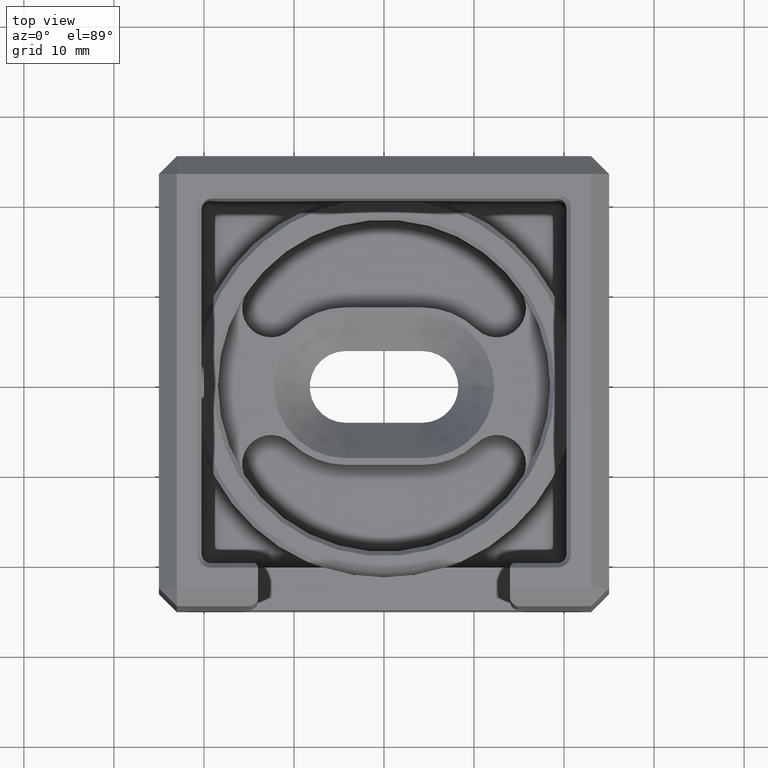
[diagram: clean part render]
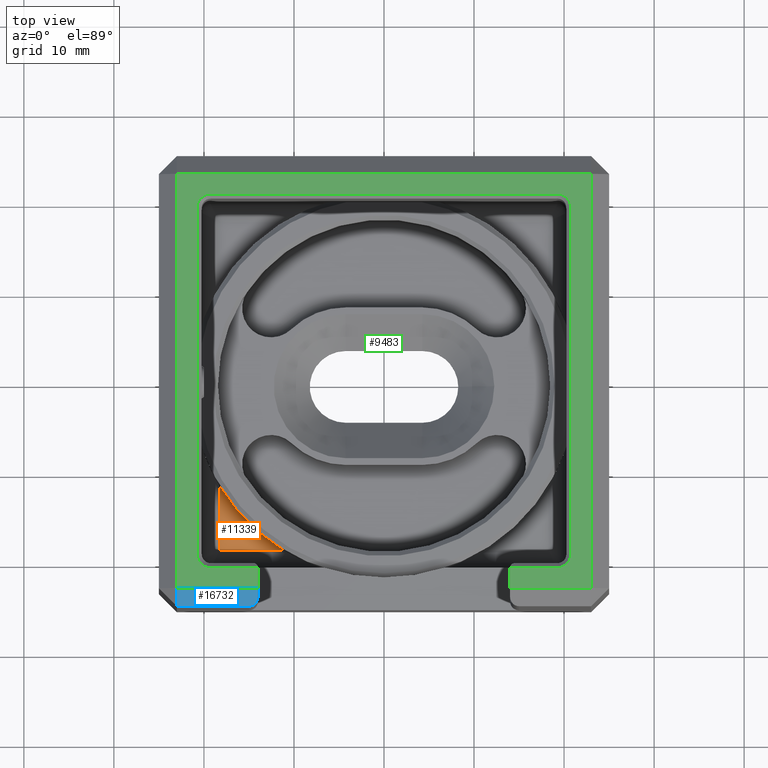
[diagram: same view with three faces highlighted in distinct colors, each labeled with its STEP entity id]
A machine part, top view with three faces highlighted in distinct colors.
Their STEP definitions:

[orange] entity #11339 — the highlighted planar face has unit normal (0, 0, 1).
#1128 = AXIS2_PLACEMENT_3D ( 'NONE', #7837, #7933, #18195 ) ;
#2959 = CIRCLE ( 'NONE', #18569, 21.35000000000000100 ) ;
#3832 = VERTEX_POINT ( 'NONE', #4011 ) ;
#3871 = CARTESIAN_POINT ( 'NONE',  ( 0.0000000000000000000, 0.0000000000000000000, -15.00000000000000400 ) ) ;
#4011 = CARTESIAN_POINT ( 'NONE',  ( -18.25000000000000400, -11.07971118757163300, -15.00000000000000400 ) ) ;
#4672 = EDGE_CURVE ( 'NONE', #8509, #3832, #2959, .T. ) ;
#5789 = DIRECTION ( 'NONE',  ( 1.000000000000000000, 0.0000000000000000000, 0.0000000000000000000 ) ) ;
#7224 = LINE ( 'NONE', #18439, #17539 ) ;
#7825 = VECTOR ( 'NONE', #13729, 1000.000000000000000 ) ;
#7837 = CARTESIAN_POINT ( 'NONE',  ( 0.0000000000000000000, 0.0000000000000000000, -15.00000000000000400 ) ) ;
#7933 = DIRECTION ( 'NONE',  ( -0.0000000000000000000, 0.0000000000000000000, 1.000000000000000000 ) ) ;
#8452 = ORIENTED_EDGE ( 'NONE', *, *, #24560, .T. ) ;
#8509 = VERTEX_POINT ( 'NONE', #9468 ) ;
#9468 = CARTESIAN_POINT ( 'NONE',  ( -11.07971118757163100, -18.25000000000000400, -15.00000000000000400 ) ) ;
#11339 = ADVANCED_FACE ( 'NONE', ( #17960 ), #20158, .T. ) ;
#13729 = DIRECTION ( 'NONE',  ( 8.566535683836084200E-017, -1.000000000000000000, 0.0000000000000000000 ) ) ;
#13914 = CARTESIAN_POINT ( 'NONE',  ( -18.25000000000000400, -1.563392762300085500E-015, -15.00000000000000400 ) ) ;
#14569 = LINE ( 'NONE', #13914, #7825 ) ;
#16133 = ORIENTED_EDGE ( 'NONE', *, *, #4672, .T. ) ;
#17539 = VECTOR ( 'NONE', #20506, 1000.000000000000000 ) ;
#17960 = FACE_OUTER_BOUND ( 'NONE', #19708, .T. ) ;
#18195 = DIRECTION ( 'NONE',  ( 1.000000000000000000, 0.0000000000000000000, 0.0000000000000000000 ) ) ;
#18439 = CARTESIAN_POINT ( 'NONE',  ( 0.0000000000000000000, -18.25000000000000400, -15.00000000000000400 ) ) ;
#18569 = AXIS2_PLACEMENT_3D ( 'NONE', #3871, #26736, #5789 ) ;
#18773 = VERTEX_POINT ( 'NONE', #23566 ) ;
#19708 = EDGE_LOOP ( 'NONE', ( #20795, #16133, #8452 ) ) ;
#20158 = PLANE ( 'NONE',  #1128 ) ;
#20506 = DIRECTION ( 'NONE',  ( 1.000000000000000000, 0.0000000000000000000, 0.0000000000000000000 ) ) ;
#20795 = ORIENTED_EDGE ( 'NONE', *, *, #21173, .T. ) ;
#21173 = EDGE_CURVE ( 'NONE', #18773, #8509, #7224, .T. ) ;
#23566 = CARTESIAN_POINT ( 'NONE',  ( -18.25000000000000400, -18.25000000000000400, -15.00000000000000400 ) ) ;
#24560 = EDGE_CURVE ( 'NONE', #3832, #18773, #14569, .T. ) ;
#26736 = DIRECTION ( 'NONE',  ( 0.0000000000000000000, -0.0000000000000000000, -1.000000000000000000 ) ) ;

[blue] entity #16732 — the highlighted planar face has unit normal (0, -0.7071, 0.7071).
#538 = EDGE_CURVE ( 'NONE', #4522, #4085, #18331, .T. ) ;
#798 = CARTESIAN_POINT ( 'NONE',  ( -13.99999999999999600, -23.99999999999999300, 18.99999999999997900 ) ) ;
#880 = CARTESIAN_POINT ( 'NONE',  ( -22.99999999999998600, -22.99999999999997900, 20.00000000000000000 ) ) ;
#1248 = CARTESIAN_POINT ( 'NONE',  ( -13.99999999999999600, -22.99999999999997900, 20.00000000000000000 ) ) ;
#1535 = ORIENTED_EDGE ( 'NONE', *, *, #23009, .T. ) ;
#2166 = ORIENTED_EDGE ( 'NONE', *, *, #538, .F. ) ;
#2313 = VECTOR ( 'NONE', #14146, 1000.000000000000100 ) ;
#4085 = VERTEX_POINT ( 'NONE', #1248 ) ;
#4522 = VERTEX_POINT ( 'NONE', #880 ) ;
#5401 = EDGE_CURVE ( 'NONE', #25790, #12059, #11193, .T. ) ;
#6556 = ORIENTED_EDGE ( 'NONE', *, *, #13095, .F. ) ;
#7254 = LINE ( 'NONE', #15214, #21728 ) ;
#7481 = DIRECTION ( 'NONE',  ( 0.0000000000000000000, -0.7071067811865451300, -0.7071067811865500200 ) ) ;
#7928 = CARTESIAN_POINT ( 'NONE',  ( -14.41421356237308900, -24.99999999999999300, 17.99999999999997200 ) ) ;
#9921 = PLANE ( 'NONE',  #18867 ) ;
#10378 = ORIENTED_EDGE ( 'NONE', *, *, #19935, .F. ) ;
#11193 =( BOUNDED_CURVE ( )  B_SPLINE_CURVE ( 3, ( #11790, #7928, #26141, #13836 ),
 .UNSPECIFIED., .F., .F. ) 
 B_SPLINE_CURVE_WITH_KNOTS ( ( 4, 4 ),
 ( 3.141592653589793100, 4.712388980384689700 ),
 .UNSPECIFIED. ) 
 CURVE ( )  GEOMETRIC_REPRESENTATION_ITEM ( )  RATIONAL_B_SPLINE_CURVE ( ( 1.000000000000000000, 0.8047378541243649400, 0.8047378541243649400, 1.000000000000000000 ) ) 
 REPRESENTATION_ITEM ( '' )  );
#11396 = LINE ( 'NONE', #16407, #2313 ) ;
#11440 = DIRECTION ( 'NONE',  ( -1.000000000000000000, 0.0000000000000000000, 0.0000000000000000000 ) ) ;
#11790 = CARTESIAN_POINT ( 'NONE',  ( -14.99999999999999600, -24.99999999999999300, 17.99999999999997200 ) ) ;
#12006 = DIRECTION ( 'NONE',  ( 1.000000000000000000, 0.0000000000000000000, 0.0000000000000000000 ) ) ;
#12059 = VERTEX_POINT ( 'NONE', #798 ) ;
#12510 = LINE ( 'NONE', #13676, #21184 ) ;
#12597 = FACE_OUTER_BOUND ( 'NONE', #19071, .T. ) ;
#13095 = EDGE_CURVE ( 'NONE', #4085, #12059, #7254, .T. ) ;
#13676 = CARTESIAN_POINT ( 'NONE',  ( -25.00000000000000000, -24.99999999999999300, 17.99999999999997200 ) ) ;
#13836 = CARTESIAN_POINT ( 'NONE',  ( -13.99999999999999600, -23.99999999999999300, 18.99999999999997900 ) ) ;
#14146 = DIRECTION ( 'NONE',  ( 6.839255870354862400E-017, -0.7071067811865451300, -0.7071067811865500200 ) ) ;
#14233 = DIRECTION ( 'NONE',  ( -0.0000000000000000000, -0.7071067811865500200, 0.7071067811865451300 ) ) ;
#14306 = ORIENTED_EDGE ( 'NONE', *, *, #5401, .T. ) ;
#15214 = CARTESIAN_POINT ( 'NONE',  ( -13.99999999999999600, -22.99999999999997900, 20.00000000000000000 ) ) ;
#16407 = CARTESIAN_POINT ( 'NONE',  ( -22.99999999999998600, -24.99999999999999300, 17.99999999999997200 ) ) ;
#16732 = ADVANCED_FACE ( 'NONE', ( #12597 ), #9921, .T. ) ;
#18331 = LINE ( 'NONE', #24300, #23074 ) ;
#18867 = AXIS2_PLACEMENT_3D ( 'NONE', #24198, #14233, #20359 ) ;
#19071 = EDGE_LOOP ( 'NONE', ( #10378, #14306, #6556, #2166, #1535 ) ) ;
#19679 = VERTEX_POINT ( 'NONE', #24553 ) ;
#19935 = EDGE_CURVE ( 'NONE', #25790, #19679, #12510, .T. ) ;
#20359 = DIRECTION ( 'NONE',  ( -1.000000000000000000, 0.0000000000000000000, -0.0000000000000000000 ) ) ;
#21184 = VECTOR ( 'NONE', #11440, 1000.000000000000000 ) ;
#21728 = VECTOR ( 'NONE', #7481, 1000.000000000000100 ) ;
#23009 = EDGE_CURVE ( 'NONE', #4522, #19679, #11396, .T. ) ;
#23074 = VECTOR ( 'NONE', #12006, 1000.000000000000000 ) ;
#23207 = CARTESIAN_POINT ( 'NONE',  ( -14.99999999999999600, -24.99999999999999300, 17.99999999999997200 ) ) ;
#24198 = CARTESIAN_POINT ( 'NONE',  ( 0.0000000000000000000, -22.99999999999997900, 20.00000000000000000 ) ) ;
#24300 = CARTESIAN_POINT ( 'NONE',  ( 24.99999999999999300, -22.99999999999997900, 20.00000000000000000 ) ) ;
#24553 = CARTESIAN_POINT ( 'NONE',  ( -22.99999999999998600, -24.99999999999999300, 17.99999999999997200 ) ) ;
#25790 = VERTEX_POINT ( 'NONE', #23207 ) ;
#26141 = CARTESIAN_POINT ( 'NONE',  ( -13.99999999999999500, -24.58578643762690100, 18.41421356237307100 ) ) ;

[green] entity #9483 — the highlighted planar face has unit normal (0, 0, 1).
#189 = DIRECTION ( 'NONE',  ( 1.000000000000000000, 0.0000000000000000000, 0.0000000000000000000 ) ) ;
#538 = EDGE_CURVE ( 'NONE', #4522, #4085, #18331, .T. ) ;
#645 = DIRECTION ( 'NONE',  ( 1.000000000000000000, 0.0000000000000000000, 0.0000000000000000000 ) ) ;
#880 = CARTESIAN_POINT ( 'NONE',  ( -22.99999999999998600, -22.99999999999997900, 20.00000000000000000 ) ) ;
#951 = EDGE_CURVE ( 'NONE', #23953, #8227, #13131, .T. ) ;
#988 = DIRECTION ( 'NONE',  ( 1.000000000000000000, 0.0000000000000000000, 0.0000000000000000000 ) ) ;
#1012 = CIRCLE ( 'NONE', #24324, 1.499999999999994400 ) ;
#1061 = ORIENTED_EDGE ( 'NONE', *, *, #538, .T. ) ;
#1248 = CARTESIAN_POINT ( 'NONE',  ( -13.99999999999999600, -22.99999999999997900, 20.00000000000000000 ) ) ;
#1608 = CARTESIAN_POINT ( 'NONE',  ( 22.99999999999997900, 22.99999999999997900, 20.00000000000000000 ) ) ;
#1747 = EDGE_CURVE ( 'NONE', #17145, #4522, #25640, .T. ) ;
#1781 = CARTESIAN_POINT ( 'NONE',  ( 14.00000000000000400, -20.75000000000000000, 20.00000000000000000 ) ) ;
#2310 = AXIS2_PLACEMENT_3D ( 'NONE', #19615, #7283, #988 ) ;
#2997 = CARTESIAN_POINT ( 'NONE',  ( 14.00000000000000400, -30.00000000000000700, 20.00000000000000000 ) ) ;
#3461 = DIRECTION ( 'NONE',  ( 0.0000000000000000000, -0.0000000000000000000, -1.000000000000000000 ) ) ;
#3531 = ORIENTED_EDGE ( 'NONE', *, *, #951, .T. ) ;
#3801 = CARTESIAN_POINT ( 'NONE',  ( -19.25000000000000000, -20.74999999999999300, 20.00000000000000000 ) ) ;
#3824 = CARTESIAN_POINT ( 'NONE',  ( -25.00000000000000700, 22.99999999999997900, 20.00000000000000000 ) ) ;
#4085 = VERTEX_POINT ( 'NONE', #1248 ) ;
#4522 = VERTEX_POINT ( 'NONE', #880 ) ;
#4566 = VERTEX_POINT ( 'NONE', #11394 ) ;
#4662 = ORIENTED_EDGE ( 'NONE', *, *, #20646, .T. ) ;
#4929 = CARTESIAN_POINT ( 'NONE',  ( -13.99999999999999600, -30.00000000000000700, 20.00000000000000000 ) ) ;
#5132 = ORIENTED_EDGE ( 'NONE', *, *, #8382, .T. ) ;
#5472 = CARTESIAN_POINT ( 'NONE',  ( 20.75000000000000400, -19.25000000000000000, 20.00000000000000000 ) ) ;
#5694 = CARTESIAN_POINT ( 'NONE',  ( -13.99999999999999600, -20.75000000000000000, 20.00000000000000000 ) ) ;
#5779 = ORIENTED_EDGE ( 'NONE', *, *, #13921, .T. ) ;
#5786 = ORIENTED_EDGE ( 'NONE', *, *, #14650, .T. ) ;
#5901 = VERTEX_POINT ( 'NONE', #12375 ) ;
#5920 = CARTESIAN_POINT ( 'NONE',  ( 24.99999999999999300, -22.99999999999997900, 20.00000000000000000 ) ) ;
#5996 = DIRECTION ( 'NONE',  ( -1.000000000000000000, 0.0000000000000000000, -0.0000000000000000000 ) ) ;
#6302 = EDGE_CURVE ( 'NONE', #13630, #7166, #17110, .T. ) ;
#6825 = CARTESIAN_POINT ( 'NONE',  ( -19.25000000000000000, -19.25000000000000000, 20.00000000000000000 ) ) ;
#6828 = CARTESIAN_POINT ( 'NONE',  ( 19.24999999999999600, 20.74999999999999300, 20.00000000000000000 ) ) ;
#7166 = VERTEX_POINT ( 'NONE', #12640 ) ;
#7258 = ORIENTED_EDGE ( 'NONE', *, *, #14980, .T. ) ;
#7265 = ORIENTED_EDGE ( 'NONE', *, *, #20098, .T. ) ;
#7283 = DIRECTION ( 'NONE',  ( -0.0000000000000000000, 0.0000000000000000000, 1.000000000000000000 ) ) ;
#7375 = FACE_OUTER_BOUND ( 'NONE', #23463, .T. ) ;
#7544 = CARTESIAN_POINT ( 'NONE',  ( -19.25000000000000000, -20.74999999999999300, 20.00000000000000000 ) ) ;
#7645 = CARTESIAN_POINT ( 'NONE',  ( -20.74999999999999600, 19.25000000000000000, 20.00000000000000000 ) ) ;
#7680 = CIRCLE ( 'NONE', #13898, 1.500000000000008200 ) ;
#7844 = VECTOR ( 'NONE', #17667, 1000.000000000000000 ) ;
#7850 = AXIS2_PLACEMENT_3D ( 'NONE', #10898, #8737, #12953 ) ;
#8227 = VERTEX_POINT ( 'NONE', #1781 ) ;
#8382 = EDGE_CURVE ( 'NONE', #5901, #24573, #10624, .T. ) ;
#8547 = VERTEX_POINT ( 'NONE', #13125 ) ;
#8575 = EDGE_CURVE ( 'NONE', #22074, #8227, #12259, .T. ) ;
#8668 = DIRECTION ( 'NONE',  ( 1.000000000000000000, 0.0000000000000000000, 0.0000000000000000000 ) ) ;
#8737 = DIRECTION ( 'NONE',  ( 0.0000000000000000000, -0.0000000000000000000, -1.000000000000000000 ) ) ;
#8758 = DIRECTION ( 'NONE',  ( 0.0000000000000000000, 1.000000000000000000, 0.0000000000000000000 ) ) ;
#9261 = VECTOR ( 'NONE', #16313, 1000.000000000000000 ) ;
#9483 = ADVANCED_FACE ( 'NONE', ( #7375 ), #25873, .T. ) ;
#9574 = EDGE_CURVE ( 'NONE', #14711, #10236, #18325, .T. ) ;
#9689 = ORIENTED_EDGE ( 'NONE', *, *, #23064, .T. ) ;
#9827 = ORIENTED_EDGE ( 'NONE', *, *, #9574, .T. ) ;
#10135 = CIRCLE ( 'NONE', #22090, 1.500000000000008200 ) ;
#10236 = VERTEX_POINT ( 'NONE', #13442 ) ;
#10244 = DIRECTION ( 'NONE',  ( -8.566535683836084200E-017, 1.000000000000000000, 0.0000000000000000000 ) ) ;
#10624 = LINE ( 'NONE', #19194, #20640 ) ;
#10633 = CARTESIAN_POINT ( 'NONE',  ( 19.25000000000000000, -19.25000000000000000, 20.00000000000000000 ) ) ;
#10898 = CARTESIAN_POINT ( 'NONE',  ( -19.25000000000000400, 19.25000000000000000, 20.00000000000000000 ) ) ;
#11118 = CARTESIAN_POINT ( 'NONE',  ( -19.25000000000000400, 20.74999999999999300, 20.00000000000000000 ) ) ;
#11262 = DIRECTION ( 'NONE',  ( -0.0000000000000000000, -1.000000000000000000, -0.0000000000000000000 ) ) ;
#11394 = CARTESIAN_POINT ( 'NONE',  ( 20.75000000000000400, -19.25000000000000000, 20.00000000000000000 ) ) ;
#11909 = EDGE_CURVE ( 'NONE', #22074, #5901, #13086, .T. ) ;
#11916 = VECTOR ( 'NONE', #11262, 1000.000000000000000 ) ;
#12006 = DIRECTION ( 'NONE',  ( 1.000000000000000000, 0.0000000000000000000, 0.0000000000000000000 ) ) ;
#12032 = CARTESIAN_POINT ( 'NONE',  ( 19.25000000000000000, -20.75000000000000700, 20.00000000000000000 ) ) ;
#12166 = ORIENTED_EDGE ( 'NONE', *, *, #17609, .T. ) ;
#12259 = LINE ( 'NONE', #2997, #20295 ) ;
#12375 = CARTESIAN_POINT ( 'NONE',  ( 22.99999999999997900, -22.99999999999997900, 20.00000000000000000 ) ) ;
#12484 = DIRECTION ( 'NONE',  ( 1.387778780781445700E-016, -1.000000000000000000, 0.0000000000000000000 ) ) ;
#12640 = CARTESIAN_POINT ( 'NONE',  ( 19.24999999999999600, 20.74999999999999300, 20.00000000000000000 ) ) ;
#12953 = DIRECTION ( 'NONE',  ( 1.000000000000000000, 0.0000000000000000000, 0.0000000000000000000 ) ) ;
#13086 = LINE ( 'NONE', #5920, #21781 ) ;
#13125 = CARTESIAN_POINT ( 'NONE',  ( 20.75000000000000400, 19.25000000000000000, 20.00000000000000000 ) ) ;
#13131 = LINE ( 'NONE', #17007, #15059 ) ;
#13242 = ORIENTED_EDGE ( 'NONE', *, *, #18753, .F. ) ;
#13442 = CARTESIAN_POINT ( 'NONE',  ( -20.75000000000000400, 19.25000000000000000, 20.00000000000000000 ) ) ;
#13630 = VERTEX_POINT ( 'NONE', #11118 ) ;
#13898 = AXIS2_PLACEMENT_3D ( 'NONE', #15860, #3461, #25902 ) ;
#13921 = EDGE_CURVE ( 'NONE', #4566, #23953, #10135, .T. ) ;
#13938 = DIRECTION ( 'NONE',  ( 0.0000000000000000000, 1.000000000000000000, 0.0000000000000000000 ) ) ;
#14286 = CARTESIAN_POINT ( 'NONE',  ( -20.74999999999999300, -19.25000000000000000, 20.00000000000000000 ) ) ;
#14362 = ORIENTED_EDGE ( 'NONE', *, *, #8575, .F. ) ;
#14650 = EDGE_CURVE ( 'NONE', #16234, #21095, #22332, .T. ) ;
#14711 = VERTEX_POINT ( 'NONE', #14286 ) ;
#14980 = EDGE_CURVE ( 'NONE', #8547, #4566, #16830, .T. ) ;
#15059 = VECTOR ( 'NONE', #17373, 1000.000000000000000 ) ;
#15410 = LINE ( 'NONE', #3824, #9261 ) ;
#15860 = CARTESIAN_POINT ( 'NONE',  ( 19.24999999999999600, 19.25000000000000000, 20.00000000000000000 ) ) ;
#16234 = VERTEX_POINT ( 'NONE', #5694 ) ;
#16313 = DIRECTION ( 'NONE',  ( -1.000000000000000000, 0.0000000000000000000, -0.0000000000000000000 ) ) ;
#16580 = DIRECTION ( 'NONE',  ( 0.0000000000000000000, -0.0000000000000000000, -1.000000000000000000 ) ) ;
#16830 = LINE ( 'NONE', #5472, #7844 ) ;
#17007 = CARTESIAN_POINT ( 'NONE',  ( 14.50000000000000200, -20.75000000000000700, 20.00000000000000000 ) ) ;
#17110 = LINE ( 'NONE', #6828, #25145 ) ;
#17145 = VERTEX_POINT ( 'NONE', #26740 ) ;
#17373 = DIRECTION ( 'NONE',  ( -1.000000000000000000, 0.0000000000000000000, -0.0000000000000000000 ) ) ;
#17609 = EDGE_CURVE ( 'NONE', #10236, #13630, #20322, .T. ) ;
#17667 = DIRECTION ( 'NONE',  ( 8.566535683836084200E-017, -1.000000000000000000, 0.0000000000000000000 ) ) ;
#18078 = ORIENTED_EDGE ( 'NONE', *, *, #6302, .T. ) ;
#18325 = LINE ( 'NONE', #7645, #19926 ) ;
#18331 = LINE ( 'NONE', #24300, #23074 ) ;
#18666 = DIRECTION ( 'NONE',  ( 0.0000000000000000000, -0.0000000000000000000, -1.000000000000000000 ) ) ;
#18753 = EDGE_CURVE ( 'NONE', #16234, #4085, #20618, .T. ) ;
#19194 = CARTESIAN_POINT ( 'NONE',  ( 22.99999999999997900, 25.00000000000000700, 20.00000000000000000 ) ) ;
#19367 = CARTESIAN_POINT ( 'NONE',  ( 14.00000000000000400, -22.99999999999997900, 20.00000000000000000 ) ) ;
#19615 = CARTESIAN_POINT ( 'NONE',  ( 0.0000000000000000000, 0.0000000000000000000, 20.00000000000000000 ) ) ;
#19926 = VECTOR ( 'NONE', #10244, 1000.000000000000000 ) ;
#20098 = EDGE_CURVE ( 'NONE', #24573, #17145, #15410, .T. ) ;
#20295 = VECTOR ( 'NONE', #13938, 1000.000000000000000 ) ;
#20322 = CIRCLE ( 'NONE', #7850, 1.500000000000001300 ) ;
#20618 = LINE ( 'NONE', #4929, #11916 ) ;
#20640 = VECTOR ( 'NONE', #8758, 1000.000000000000000 ) ;
#20646 = EDGE_CURVE ( 'NONE', #7166, #8547, #7680, .T. ) ;
#20831 = VECTOR ( 'NONE', #12484, 1000.000000000000000 ) ;
#21095 = VERTEX_POINT ( 'NONE', #7544 ) ;
#21682 = VECTOR ( 'NONE', #5996, 1000.000000000000000 ) ;
#21781 = VECTOR ( 'NONE', #24457, 1000.000000000000000 ) ;
#22074 = VERTEX_POINT ( 'NONE', #19367 ) ;
#22090 = AXIS2_PLACEMENT_3D ( 'NONE', #10633, #18666, #8668 ) ;
#22332 = LINE ( 'NONE', #3801, #21682 ) ;
#22959 = ORIENTED_EDGE ( 'NONE', *, *, #11909, .T. ) ;
#23064 = EDGE_CURVE ( 'NONE', #21095, #14711, #1012, .T. ) ;
#23074 = VECTOR ( 'NONE', #12006, 1000.000000000000000 ) ;
#23463 = EDGE_LOOP ( 'NONE', ( #5779, #3531, #14362, #22959, #5132, #7265, #25330, #1061, #13242, #5786, #9689, #9827, #12166, #18078, #4662, #7258 ) ) ;
#23953 = VERTEX_POINT ( 'NONE', #12032 ) ;
#24300 = CARTESIAN_POINT ( 'NONE',  ( 24.99999999999999300, -22.99999999999997900, 20.00000000000000000 ) ) ;
#24324 = AXIS2_PLACEMENT_3D ( 'NONE', #6825, #16580, #189 ) ;
#24457 = DIRECTION ( 'NONE',  ( 1.000000000000000000, 0.0000000000000000000, 0.0000000000000000000 ) ) ;
#24573 = VERTEX_POINT ( 'NONE', #1608 ) ;
#24770 = CARTESIAN_POINT ( 'NONE',  ( -22.99999999999998600, -24.99999999999999300, 20.00000000000000000 ) ) ;
#25145 = VECTOR ( 'NONE', #645, 1000.000000000000000 ) ;
#25330 = ORIENTED_EDGE ( 'NONE', *, *, #1747, .T. ) ;
#25640 = LINE ( 'NONE', #24770, #20831 ) ;
#25873 = PLANE ( 'NONE',  #2310 ) ;
#25902 = DIRECTION ( 'NONE',  ( 1.000000000000000000, 0.0000000000000000000, 0.0000000000000000000 ) ) ;
#26740 = CARTESIAN_POINT ( 'NONE',  ( -22.99999999999999300, 22.99999999999997900, 20.00000000000000000 ) ) ;